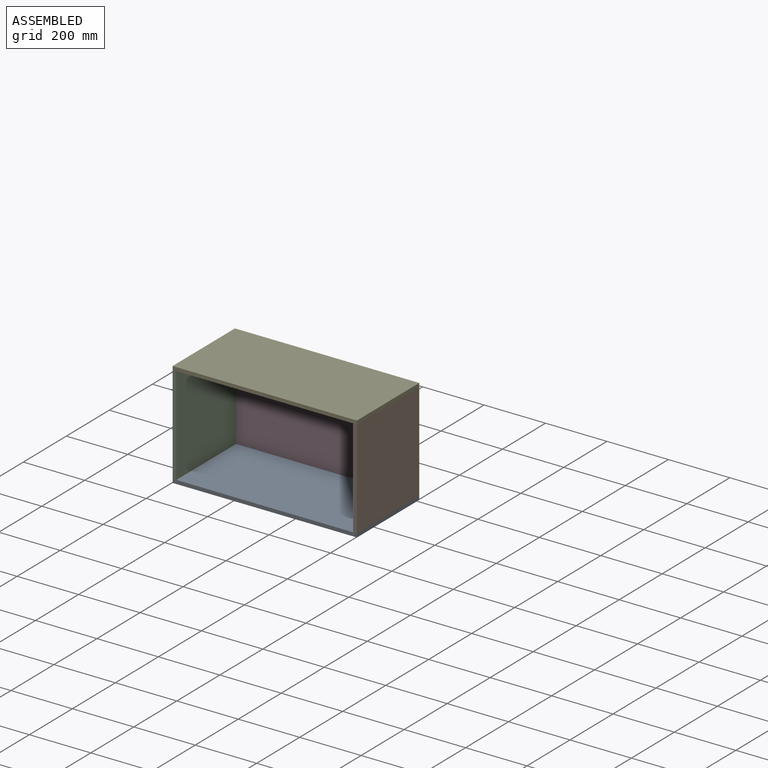
[diagram: assembled view]
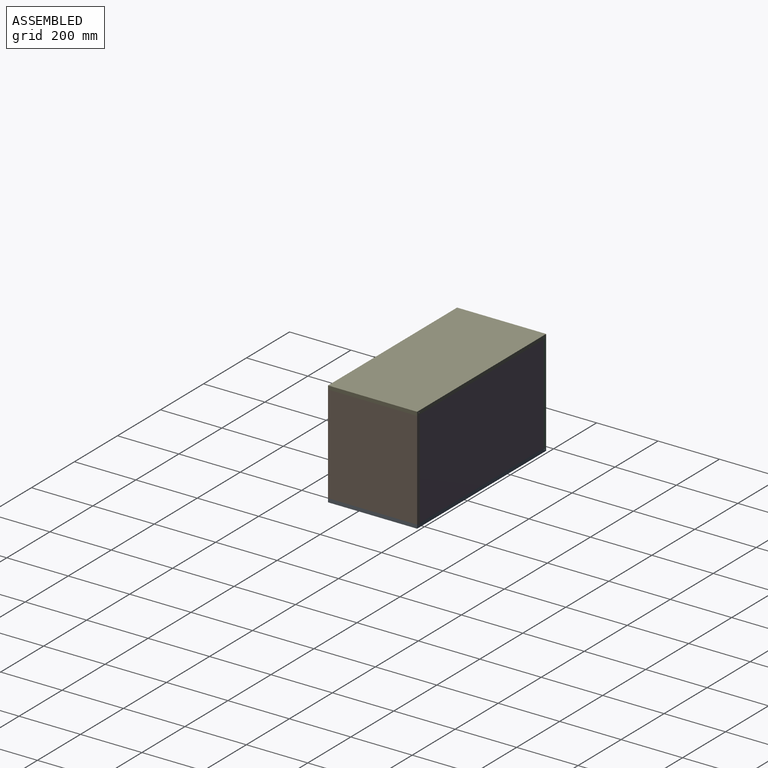
[diagram: assembled view, second angle]
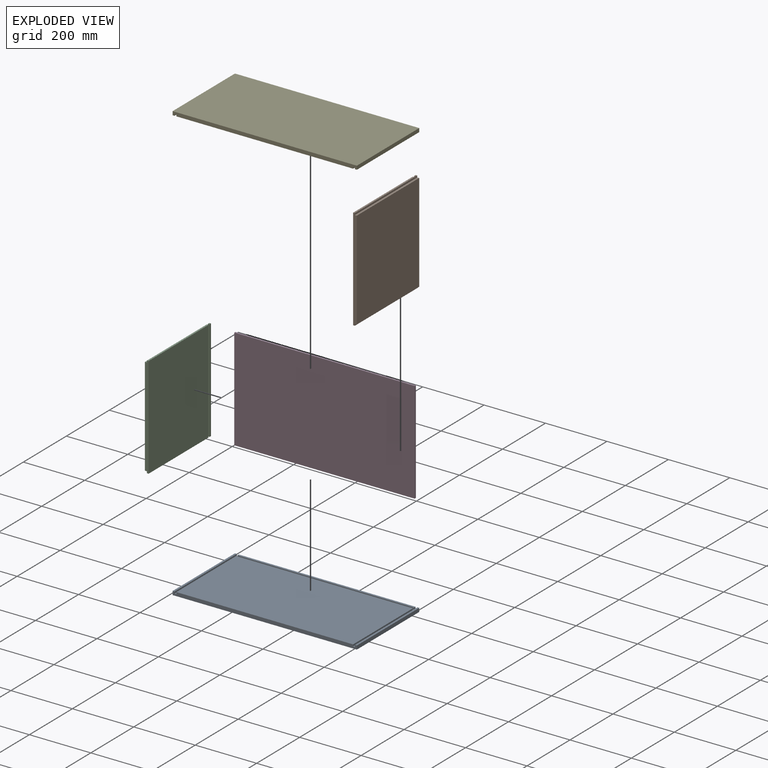
[diagram: exploded view]
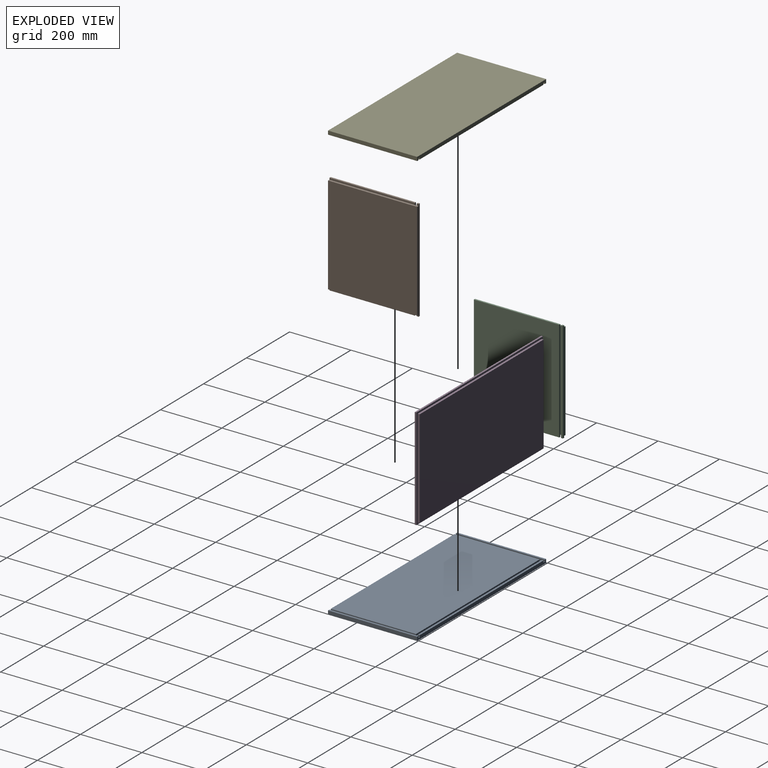
[diagram: exploded view, second angle]
ASSEMBLY  parts=5 mates=12
PART A: 26 faces, bbox 600x290x12 mm
  f0: plane 575.5x6.25mm, normal (0,0,1), area 3596.9mm2, adj f3,f6,f9,f19
  f1: plane 290x6.25mm, normal (0,0,1), area 1811mm2, adj f4,f8,f9,f11,f14,f23,f24,f25
  f2: plane 290x6.25mm, normal (0,0,1), area 1811mm2, adj f5,f8,f9,f10,f15,f20,f21,f22
  f3: plane 6.25x6mm, normal (1,0,0), area 37.5mm2, adj f0,f9,f17,f19
  f4: plane 6.25x6mm, normal (-1,0,0), area 37.5mm2, adj f1,f9,f17,f23
  f5: plane 6.25x6mm, normal (1,0,0), area 37.5mm2, adj f2,f9,f17,f21
  f6: plane 6.25x6mm, normal (-1,0,0), area 37.5mm2, adj f0,f9,f17,f19
  f7: plane 575.5x277.75mm, normal (0,0,1), area 159845.1mm2, adj f8,f13,f16,f18
  f8: plane 600x12mm, normal (0,-1,0), area 7128mm2, adj f1,f2,f7,f10,f11,f12,f13,f14
  f9: plane 600x12mm, normal (0,1,0), area 7128mm2, adj f0,f1,f2,f3,f4,f5,f6,f10
  f10: plane 290x12mm, normal (-1,0,0), area 3480mm2, adj f2,f8,f9,f12
  f11: plane 290x12mm, normal (1,0,0), area 3480mm2, adj f1,f8,f9,f12
  f12: plane 600x290mm, normal (0,0,-1), area 174000mm2, adj f8,f9,f10,f11
  f13: plane 277.75x6mm, normal (1,0,0), area 1666.5mm2, adj f7,f8,f17,f18
  f14: plane 277.75x6mm, normal (-1,0,0), area 1666.5mm2, adj f1,f8,f17,f24
  f15: plane 277.75x6mm, normal (1,0,0), area 1666.5mm2, adj f2,f8,f17,f20
  f16: plane 277.75x6mm, normal (-1,0,0), area 1666.5mm2, adj f7,f8,f17,f18
  f17: plane 588x290mm, normal (0,0,1), area 6936mm2, adj f3,f4,f5,f6,f8,f9,f13,f14
  f18: plane 575.5x6mm, normal (0,1,0), area 3453mm2, adj f7,f13,f16,f17
  f19: plane 575.5x6mm, normal (0,-1,0), area 3453mm2, adj f0,f3,f6,f17
  f20: plane 6x0.25mm, normal (0,1,0), area 1.5mm2, adj f2,f15,f17,f22
  f21: plane 6x0.25mm, normal (0,-1,0), area 1.5mm2, adj f2,f5,f17,f22
  f22: plane 6x6mm, normal (1,0,0), area 36mm2, adj f2,f17,f20,f21
  f23: plane 6x0.25mm, normal (0,-1,0), area 1.5mm2, adj f1,f4,f17,f25
  f24: plane 6x0.25mm, normal (0,1,0), area 1.5mm2, adj f1,f14,f17,f25
  f25: plane 6x6mm, normal (-1,0,0), area 36mm2, adj f1,f17,f23,f24
PART B: 18 faces, bbox 12x290x331.5 mm
  f0: plane 277.75x5.5mm, normal (0,0,1), area 1527.6mm2, adj f8,f10,f14,f16
  f1: plane 277.75x5.5mm, normal (0,0,-1), area 1527.6mm2, adj f8,f10,f12,f16
  f2: plane 331.5x6.25mm, normal (1,0,0), area 2071.9mm2, adj f5,f7,f9,f17
  f3: plane 6.25x5.75mm, normal (-1,0,0), area 35.9mm2, adj f5,f9,f11,f17
  f4: plane 6.25x5.75mm, normal (-1,0,0), area 35.9mm2, adj f5,f7,f13,f17
  f5: plane 331.5x12mm, normal (0,1,0), area 3903.3mm2, adj f2,f3,f4,f6,f7,f9,f11,f13
  f6: plane 320x290mm, normal (-1,0,0), area 92800mm2, adj f5,f8,f11,f13
  f7: plane 6.25x5.5mm, normal (0,0,1), area 34.4mm2, adj f2,f4,f5,f17
  f8: plane 331.5x12mm, normal (0,-1,0), area 3903.3mm2, adj f0,f1,f6,f10,f11,f12,f13,f14
  f9: plane 6.25x5.5mm, normal (0,0,-1), area 34.4mm2, adj f2,f3,f5,f17
  f10: plane 331.5x277.75mm, normal (1,0,0), area 92074.1mm2, adj f0,f1,f8,f16
  f11: plane 290x6.5mm, normal (0,0,-1), area 1882mm2, adj f3,f5,f6,f8,f12,f15,f16,f17
  f12: plane 277.75x5.75mm, normal (-1,0,0), area 1597.1mm2, adj f1,f8,f11,f16
  f13: plane 290x6.5mm, normal (0,0,1), area 1882mm2, adj f4,f5,f6,f8,f14,f15,f16,f17
  f14: plane 277.75x5.75mm, normal (-1,0,0), area 1597.1mm2, adj f0,f8,f13,f16
  f15: plane 320x6mm, normal (1,0,0), area 1920mm2, adj f11,f13,f16,f17
  f16: plane 331.5x6mm, normal (0,1,0), area 1983.3mm2, adj f0,f1,f10,f11,f12,f13,f14,f15
  f17: plane 331.5x6mm, normal (0,-1,0), area 1983.3mm2, adj f2,f3,f4,f7,f9,f11,f13,f15
PART C: same geometry as B
PART D: 11 faces, bbox 587.5x12x331.5 mm
  f0: plane 331.5x5.5mm, normal (1,0,0), area 1823.3mm2, adj f1,f3,f4,f9
  f1: plane 587.5x5.5mm, normal (0,0,1), area 3231.3mm2, adj f0,f2,f4,f9
  f2: plane 331.5x5.5mm, normal (-1,0,0), area 1823.3mm2, adj f1,f3,f4,f9
  f3: plane 587.5x5.5mm, normal (0,0,-1), area 3231.3mm2, adj f0,f2,f4,f9
  f4: plane 587.5x331.5mm, normal (0,-1,0), area 194756.3mm2, adj f0,f1,f2,f3
  f5: plane 320x6.5mm, normal (-1,0,0), area 2080mm2, adj f6,f8,f9,f10
  f6: plane 576x6.5mm, normal (0,0,1), area 3744mm2, adj f5,f7,f9,f10
  f7: plane 320x6.5mm, normal (1,0,0), area 2080mm2, adj f6,f8,f9,f10
  f8: plane 576x6.5mm, normal (0,0,-1), area 3744mm2, adj f5,f7,f9,f10
  f9: plane 587.5x331.5mm, normal (0,1,0), area 10436.3mm2, adj f0,f1,f2,f3,f5,f6,f7,f8
  f10: plane 576x320mm, normal (0,1,0), area 184320mm2, adj f5,f6,f7,f8
PART E: same geometry as A
PLACE A t=(121.44,-133.93,-756.78)mm
PLACE B rot(axis=(0,1,0),180deg) t=(421.44,-133.93,-596.78)mm
PLACE C rot(axis=(0,-1,0.01),0deg) t=(-178.56,-133.93,-596.78)mm
PLACE D rot(axis=(0,-1,0.01),0deg) t=(121.44,11.07,-596.78)mm fixed
PLACE E rot(axis=(0,1,0),180deg) t=(121.44,-133.93,-436.78)mm
MATE planar B.f13 <-> A.f1  axis (0,0,-1) through (418.2,-134.15,-756.78)mm
MATE planar C.f6 <-> A.f10  axis (-1,0,0) through (-178.56,-133.93,-596.78)mm
MATE planar D.f5 <-> C.f2  axis (-1,0,0) through (-166.56,7.82,-596.78)mm
MATE planar E.f10 <-> B.f6  axis (1,0,0) through (421.44,-133.93,-430.78)mm
MATE planar E.f2 <-> B.f11  axis (0,0,-1) through (418.32,-134.04,-436.78)mm
MATE planar D.f10 <-> A.f9  axis (0,1,0) through (121.44,11.07,-596.78)mm
MATE planar A.f0 <-> D.f8  axis (0,0,1) through (121.44,7.95,-756.78)mm
MATE planar B.f6 <-> A.f11  axis (1,0,0) through (421.44,-133.93,-596.78)mm
MATE planar D.f10 <-> B.f5  axis (0,1,0) through (121.44,11.07,-596.78)mm
MATE planar D.f10 <-> C.f5  axis (0,1,0) through (121.44,11.07,-596.78)mm
MATE planar E.f9 <-> D.f10  axis (0,1,0) through (121.44,11.07,-430.75)mm
MATE planar C.f11 <-> A.f2  axis (0,0,-1) through (-175.31,-134.15,-756.78)mm
